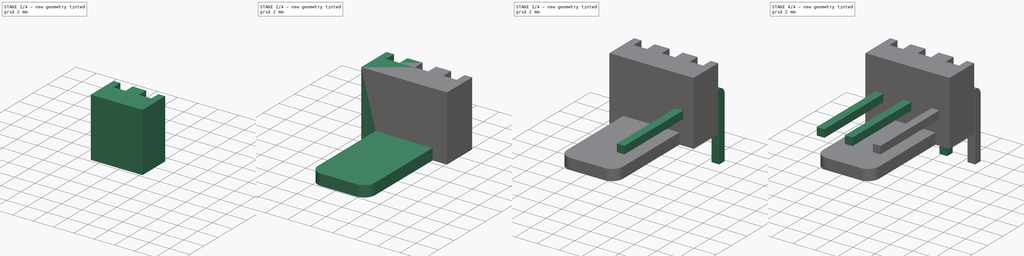
[diagram: build sequence overview — one tinted view per stage of 4, left to right]
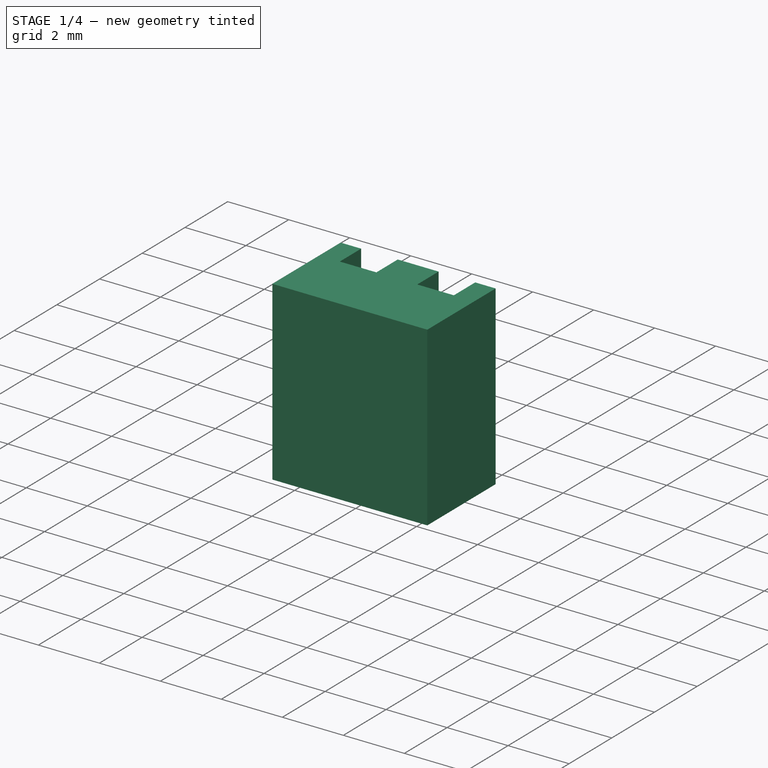
[diagram: stage 1 of 4 — iso view after this stage's code; geometry added in this stage tinted green]
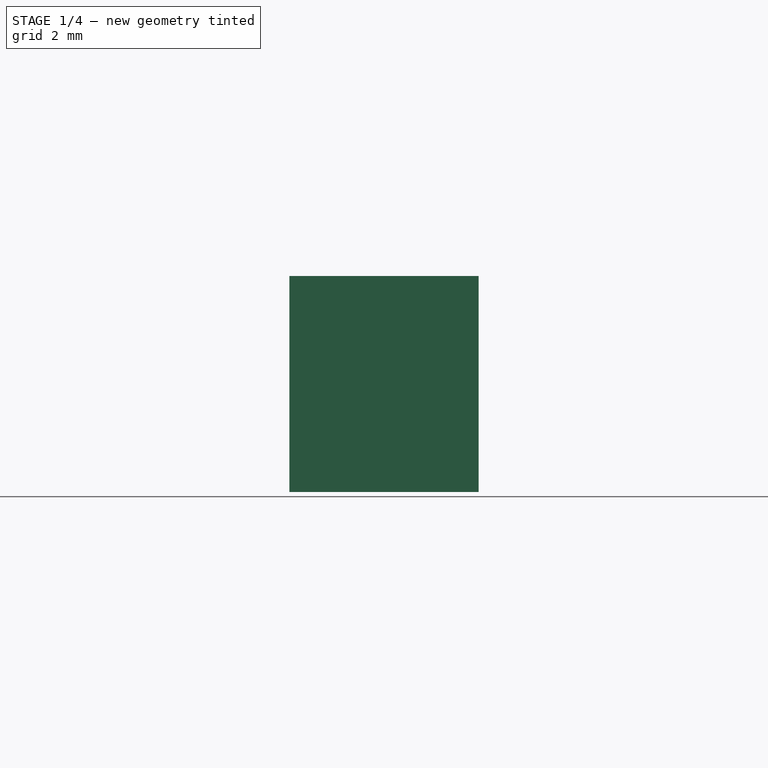
[diagram: stage 1 of 4 — front view after this stage's code; geometry added in this stage tinted green]
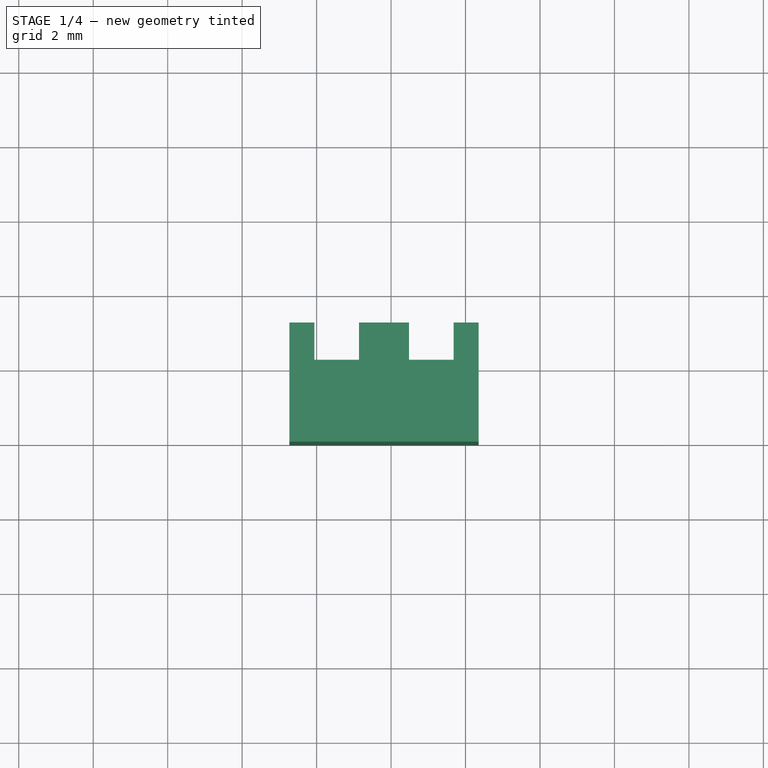
[diagram: stage 1 of 4 — top view after this stage's code; geometry added in this stage tinted green]
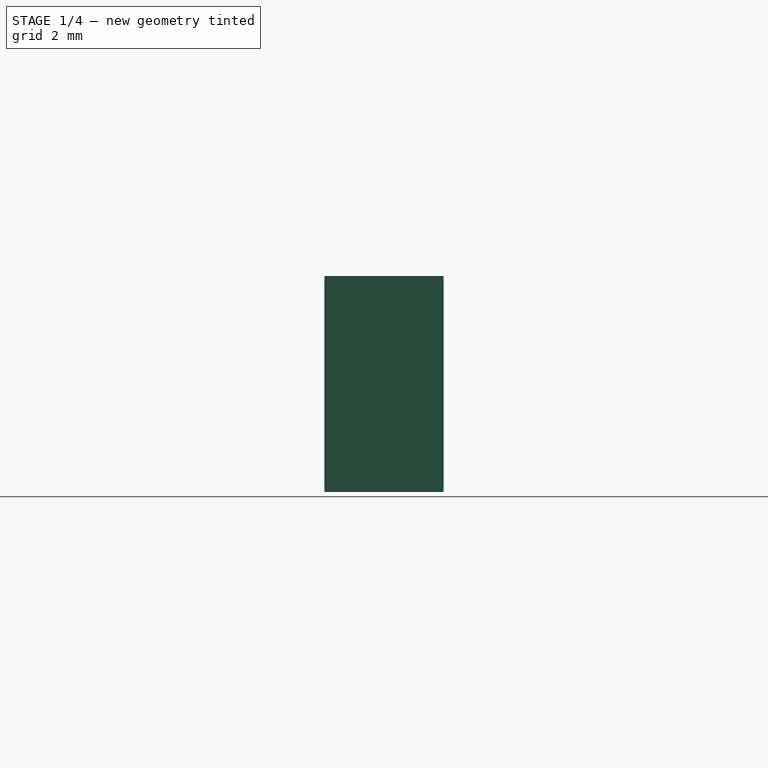
[diagram: stage 1 of 4 — right view after this stage's code; geometry added in this stage tinted green]
FCSTD DOCUMENT  (FreeCAD 0.14R3692 (Git))
Label: Connector_Male-RightAngle
License: CC-BY 3.0
LicenseURL: http://creativecommons.org/licenses/by/3.0/
objects: Sketcher::SketchObject×4, Part::FeaturePython×4, Part::MultiFuse×3, PartDesign::Pad×2, Part::Sweep×1, Part::Fillet×1
note: 17 computed .brp shape members not serialized (recipe doc carries the construction recipe); baked Part::Feature solids carry a one-line shape summary decoded from their .brp

FEATURE [Sketcher::SketchObject] Sketch  label="ConnectorSketch"
  sketch-geometry (8):
    g0: LineSegment StartX=1.27 StartY=0 StartZ=0 EndX=-1.27 EndY=0 EndZ=0
    g1: LineSegment StartX=-1.27 StartY=0 StartZ=0 EndX=-1.27 EndY=3.2 EndZ=0
    g2: LineSegment StartX=1.27 StartY=3.2 StartZ=0 EndX=1.27 EndY=0 EndZ=0
    g3: LineSegment StartX=1.27 StartY=3.2 StartZ=0 EndX=0.6 EndY=3.2 EndZ=0
    g4: LineSegment StartX=0.6 StartY=3.2 StartZ=0 EndX=0.6 EndY=2.2 EndZ=0
    g5: LineSegment StartX=0.6 StartY=2.2 StartZ=0 EndX=-0.6 EndY=2.2 EndZ=0
    g6: LineSegment StartX=-0.6 StartY=2.2 StartZ=0 EndX=-0.6 EndY=3.2 EndZ=0
    g7: LineSegment StartX=-0.6 StartY=3.2 StartZ=0 EndX=-1.27 EndY=3.2 EndZ=0
  constraints (23):
    c: Coincident(g0,g1)
    c: Horizontal(g0)
    c: Vertical(g1)
    c: Vertical(g2)
    c: Coincident(g2,g3)
    c: Horizontal(g3)
    c: Coincident(g3,g4)
    c: Vertical(g4)
    c: Coincident(g4,g5)
    c: Horizontal(g5)
    c: Coincident(g5,g6)
    c: Vertical(g6)
    c: Coincident(g6,g7)
    c: Coincident(g7,g1)
    c: Horizontal(g7)
    c: DistanceX(g0) = -2.54
    c: DistanceX(g5) = -1.2
    c: Equal(g7,g3)
    c: DistanceY(g2) = -3.2
    c: Equal(g1,g2)
    c: DistanceY(g4) = -1
    c: Coincident(g0,g2)
    c: Symmetric(g0,g0,g-1)
FEATURE [PartDesign::Pad] Pad  label="ConnectorPad"
  Length = 5.8
  Length2 = 100
  Sketch = -> Sketch
  Type = 0
FEATURE [Part::FeaturePython] Clone  label="Clone of ConnectorPad"  # Draft clone (typed FeaturePython)
  Objects = -> [Pad]
  Placement = pos=(2.54,0,0) rot=(0,0,1;0rad)
  Scale = (1,1,1)
FEATURE [Part::FeaturePython] Clone001  label="Clone of ConnectorPad001"  # Draft clone (typed FeaturePython)
  Objects = -> [Pad]
  Placement = pos=(5.08,0,0) rot=(0,0,1;0rad)
  Scale = (1,1,1)
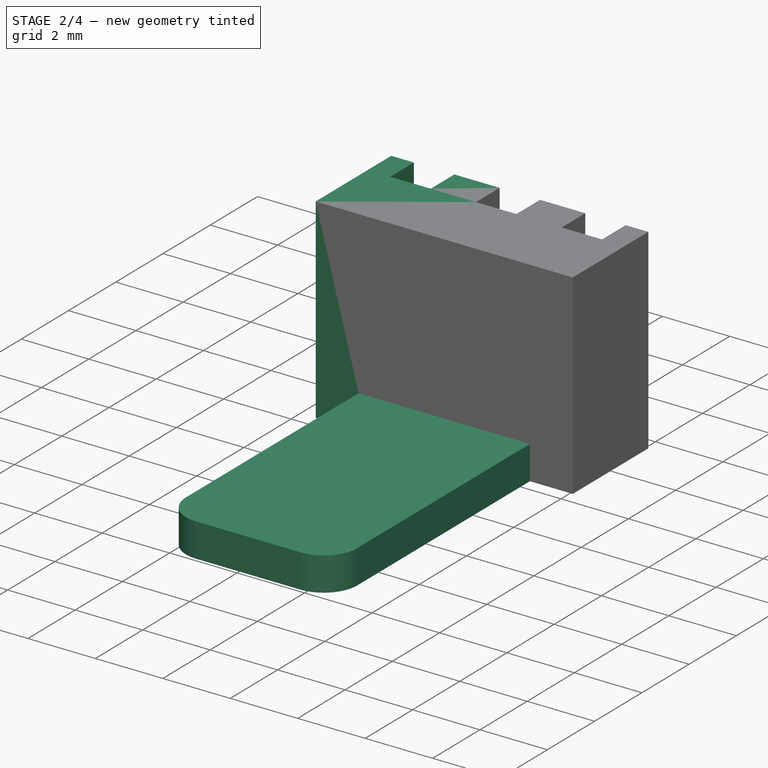
[diagram: stage 2 of 4 — iso view after this stage's code; geometry added in this stage tinted green]
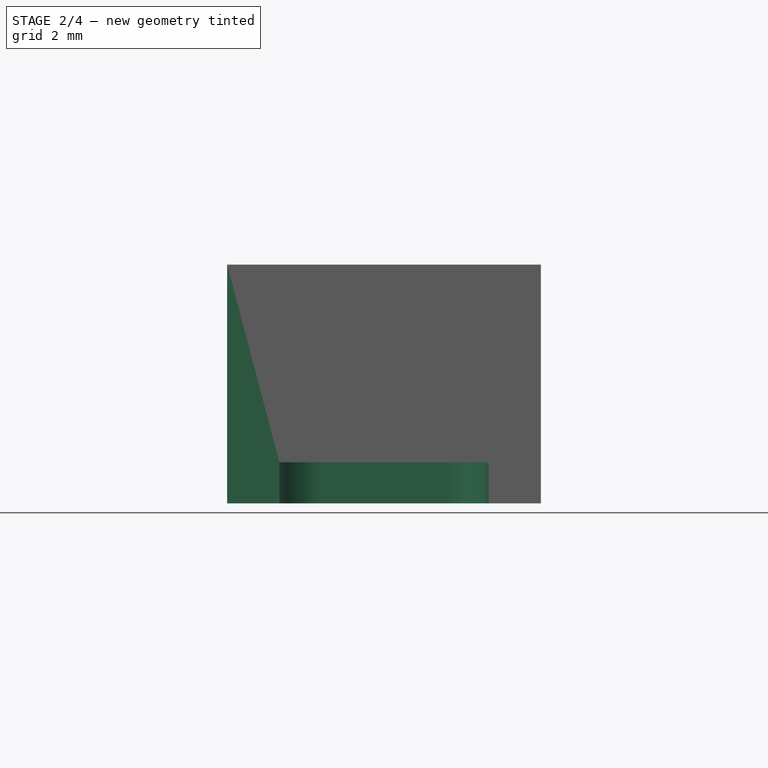
[diagram: stage 2 of 4 — front view after this stage's code; geometry added in this stage tinted green]
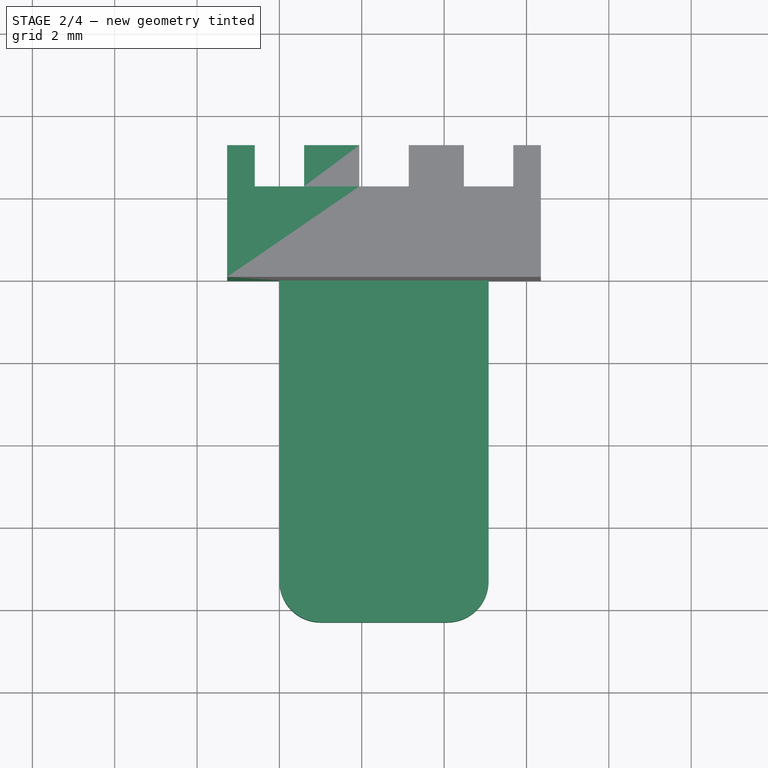
[diagram: stage 2 of 4 — top view after this stage's code; geometry added in this stage tinted green]
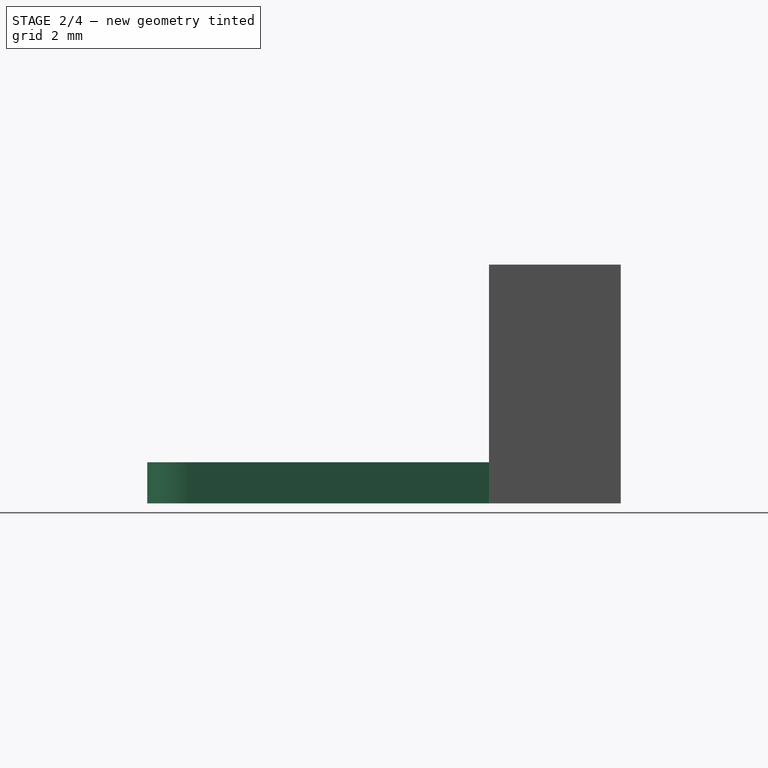
[diagram: stage 2 of 4 — right view after this stage's code; geometry added in this stage tinted green]
FEATURE [Part::MultiFuse] Fusion  label="ConnectorFusion"
  Shapes = -> [Pad,Clone,Clone001]
FEATURE [Sketcher::SketchObject] Sketch003  label="FinSketch003"
  Placement = pos=(0,0,0) rot=(1,0,0;1.5708rad)
  Support = -> Fusion [Face6]
  sketch-geometry (4):
    g0: LineSegment StartX=0 StartY=0 StartZ=0 EndX=5.08 EndY=0 EndZ=0
    g1: LineSegment StartX=5.08 StartY=0 StartZ=0 EndX=5.08 EndY=1 EndZ=0
    g2: LineSegment StartX=5.08 StartY=1 StartZ=0 EndX=0 EndY=1 EndZ=0
    g3: LineSegment StartX=0 StartY=1 StartZ=0 EndX=0 EndY=0 EndZ=0
  constraints (11):
    c: Coincident(g0,g1)
    c: Coincident(g1,g2)
    c: Coincident(g2,g3)
    c: Coincident(g3,g0)
    c: Horizontal(g0)
    c: Horizontal(g2)
    c: Vertical(g1)
    c: Vertical(g3)
    c: Coincident(g-1,g0)
    c: DistanceY(g1) = 1
    c: DistanceX(g0) = 5.08
FEATURE [PartDesign::Pad] Pad001  label="FinPad001"
  Length = 8.3
  Length2 = 100
  Sketch = -> Sketch003
  Type = 0
FEATURE [Part::Fillet] Fillet  label="FinFillet"
  Base = -> Pad001
  Edges = 2 edges r=1: [Edge31,Edge35]
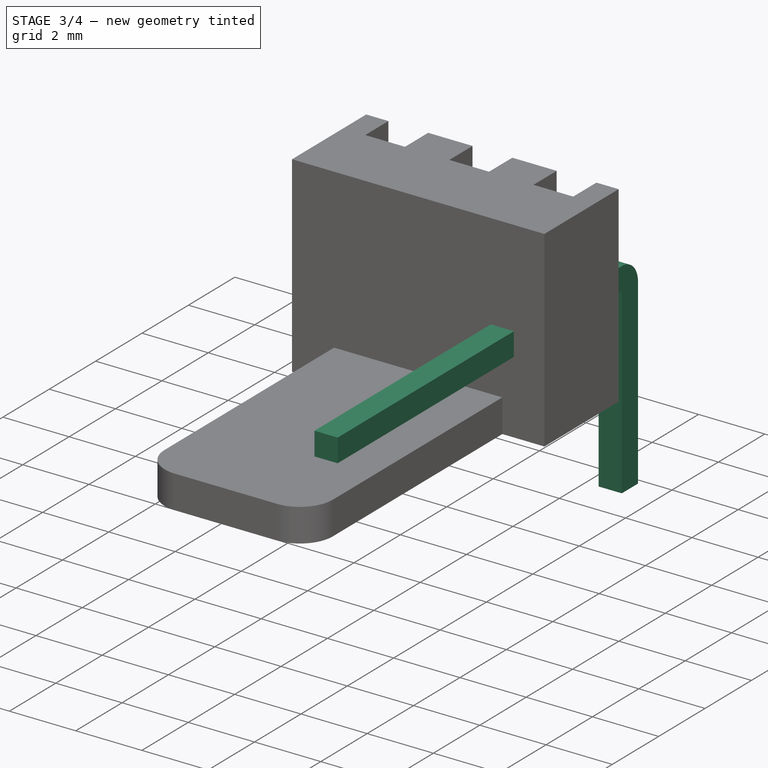
[diagram: stage 3 of 4 — iso view after this stage's code; geometry added in this stage tinted green]
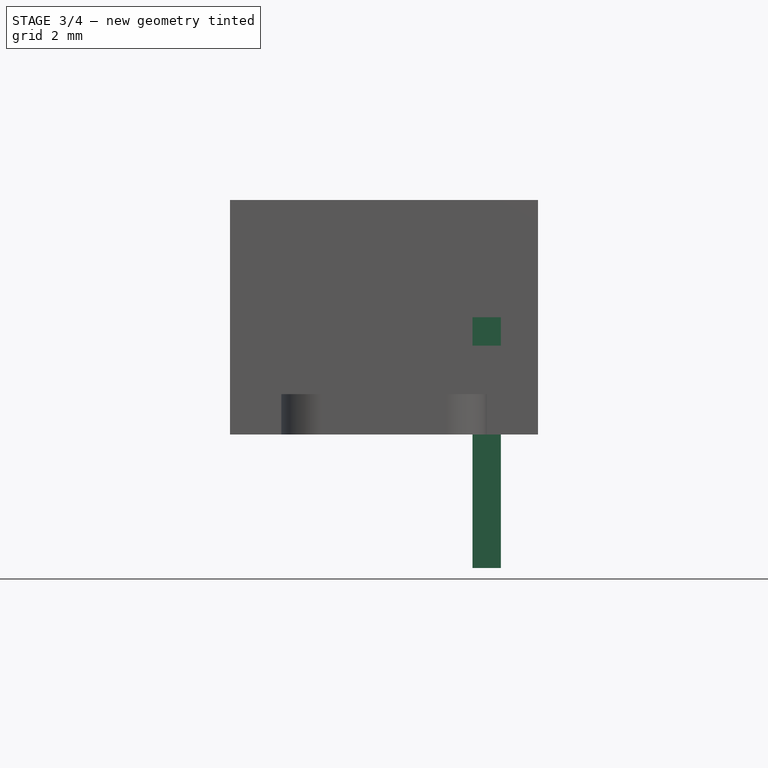
[diagram: stage 3 of 4 — front view after this stage's code; geometry added in this stage tinted green]
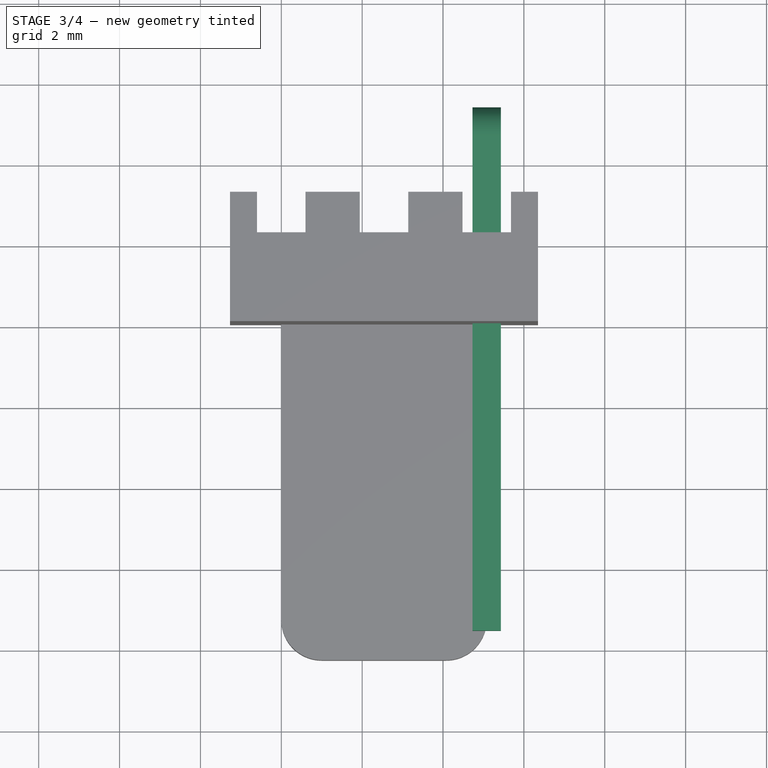
[diagram: stage 3 of 4 — top view after this stage's code; geometry added in this stage tinted green]
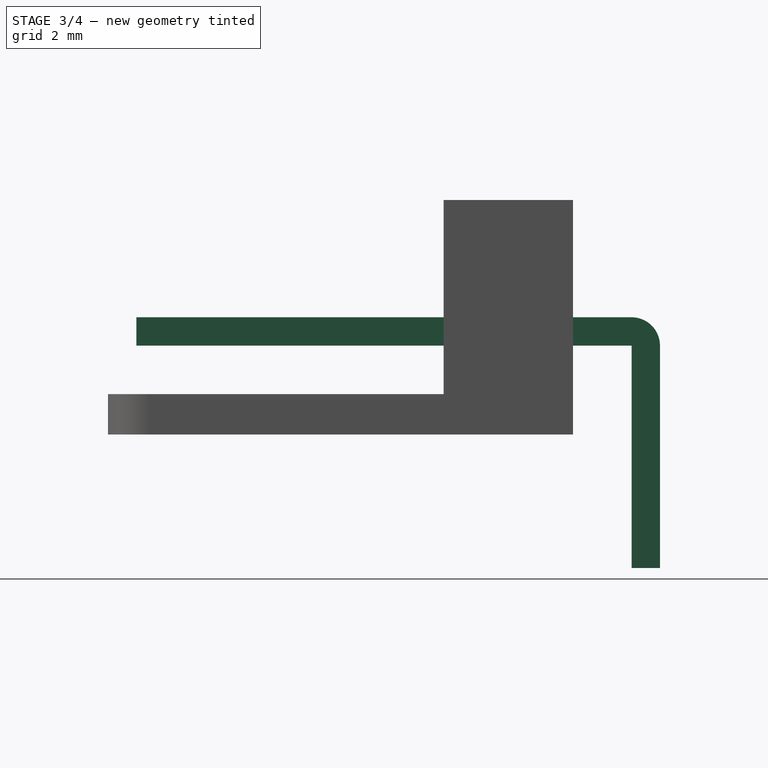
[diagram: stage 3 of 4 — right view after this stage's code; geometry added in this stage tinted green]
FEATURE [Sketcher::SketchObject] Sketch001  label="PinSketch001"
  Placement = pos=(0,0,0) rot=(0.57735,0.57735,0.57735;2.0944rad)
  sketch-geometry (3):
    g0: LineSegment StartX=5 StartY=-3.3 StartZ=0 EndX=5 EndY=2.2 EndZ=0
    g1: LineSegment StartX=4.65 StartY=2.55 StartZ=0 EndX=-7.6 EndY=2.55 EndZ=0
    g2: ArcOfCircle CenterX=4.65 CenterY=2.2 CenterZ=0 NormalX=0 NormalY=0 NormalZ=1 Radius=0.35 StartAngle=0 EndAngle=1.5708
  constraints (9):
    c: Vertical(g0)
    c: Horizontal(g1)
    c: DistanceY(g-1,g0) = -3.3
    c: DistanceX(g-1,g1) = -7.6
    c: Tangent(g0,g2)
    c: Tangent(g1,g2)
    c: DistanceY(g-1,g1) = 2.55
    c: DistanceX(g-1,g0) = 5
    c: Radius(g2) = 0.35
FEATURE [Sketcher::SketchObject] Sketch002  label="PinPathSketch002"
  Placement = pos=(0,0,0) rot=(-1,0,0;4.71239rad)
  sketch-geometry (4):
    g0: LineSegment StartX=0.35 StartY=2.2 StartZ=0 EndX=-0.35 EndY=2.2 EndZ=0
    g1: LineSegment StartX=-0.35 StartY=2.2 StartZ=0 EndX=-0.35 EndY=2.9 EndZ=0
    g2: LineSegment StartX=-0.35 StartY=2.9 StartZ=0 EndX=0.35 EndY=2.9 EndZ=0
    g3: LineSegment StartX=0.35 StartY=2.9 StartZ=0 EndX=0.35 EndY=2.2 EndZ=0
  constraints (12):
    c: Coincident(g0,g1)
    c: Coincident(g1,g2)
    c: Coincident(g2,g3)
    c: Coincident(g3,g0)
    c: Horizontal(g0)
    c: Horizontal(g2)
    c: Vertical(g1)
    c: Vertical(g3)
    c: Equal(g0,g1)
    c: DistanceY(g3) = -0.7
    c: Symmetric(g0,g0,g-2)
    c: DistanceY(g-1,g0) = 2.2
FEATURE [Part::Sweep] Sweep  label="PinSweep"
  Frenet = false
  Sections = -> [Sketch002]
  Solid = true
  Spine = -> Sketch001 [Edge2]
  Transition = 1
FEATURE [Part::FeaturePython] Clone003  label="Clone of PinSweep001"  # Draft clone (typed FeaturePython)
  Objects = -> [Sweep]
  Placement = pos=(5.08,0,0) rot=(0,0,1;0rad)
  Scale = (1,1,1)
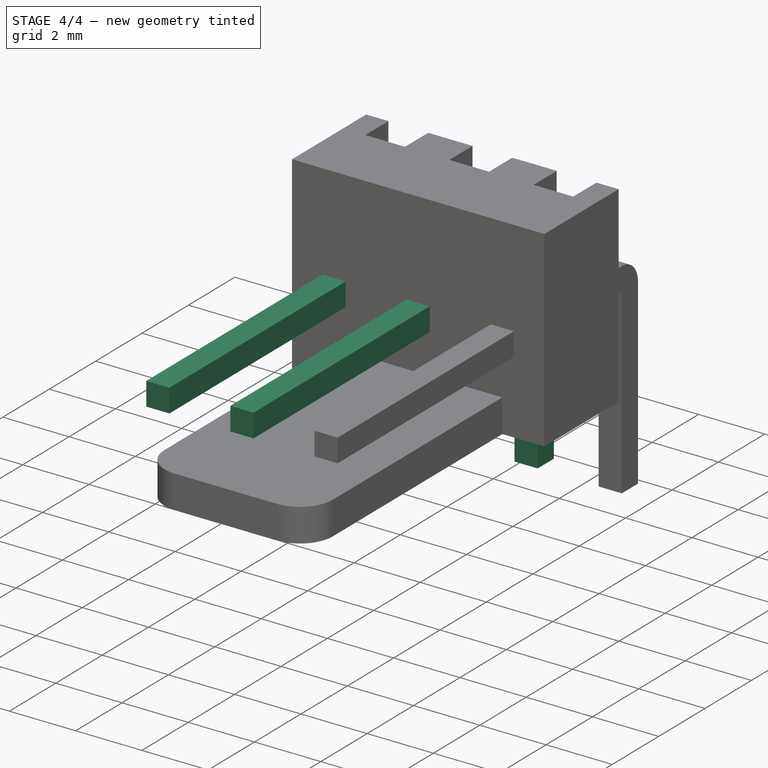
[diagram: stage 4 of 4 — iso view after this stage's code; geometry added in this stage tinted green]
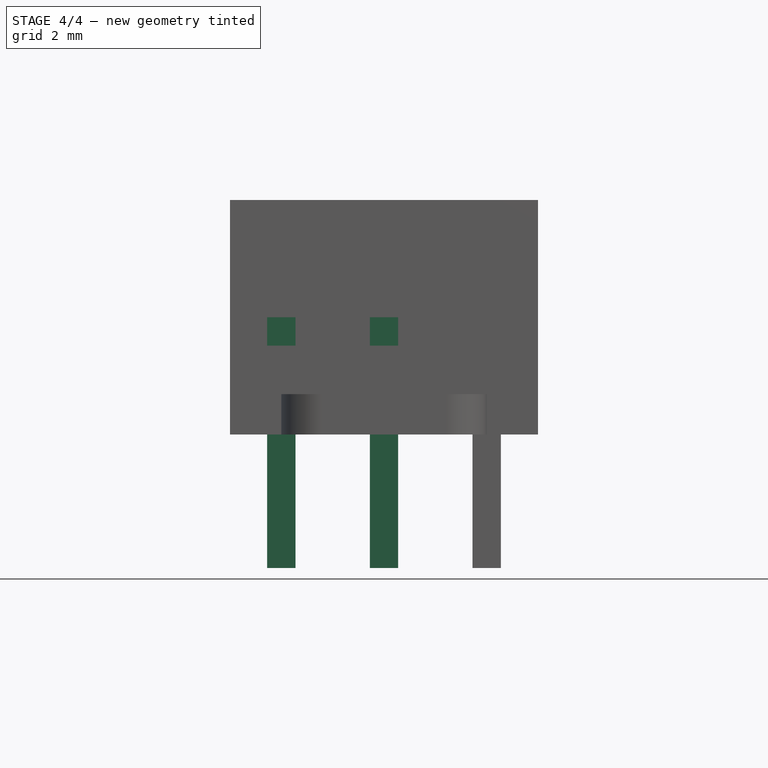
[diagram: stage 4 of 4 — front view after this stage's code; geometry added in this stage tinted green]
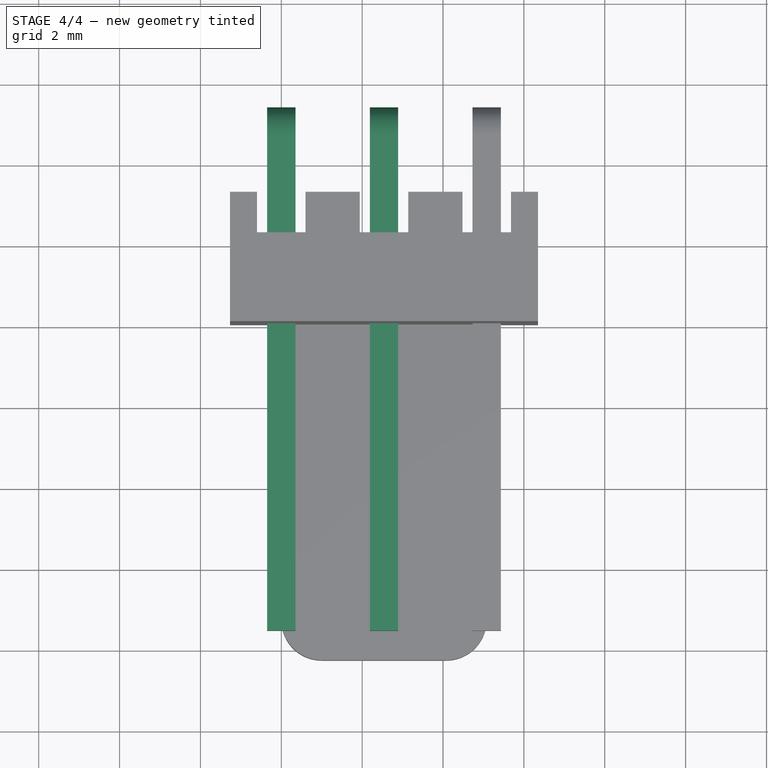
[diagram: stage 4 of 4 — top view after this stage's code; geometry added in this stage tinted green]
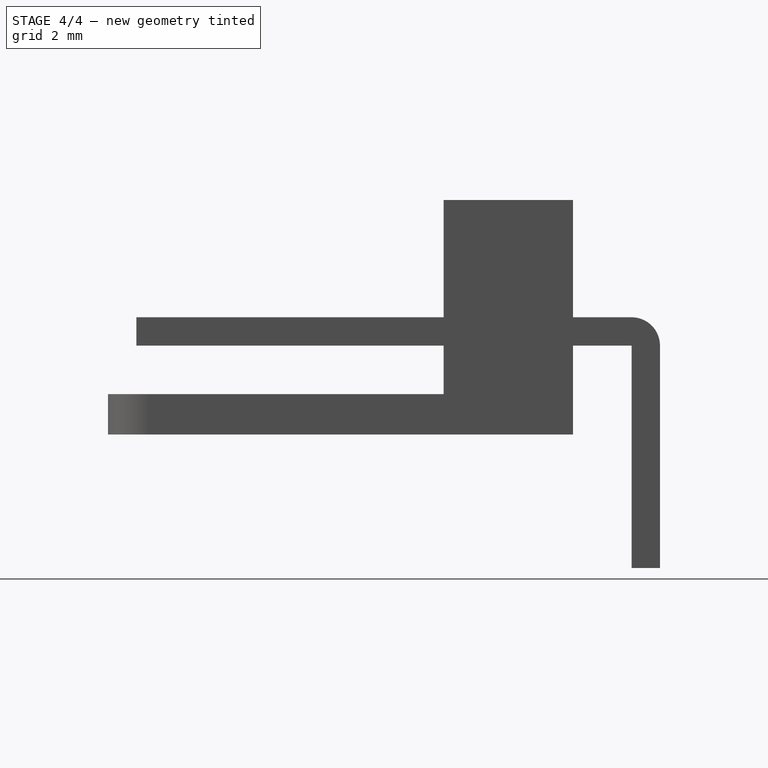
[diagram: stage 4 of 4 — right view after this stage's code; geometry added in this stage tinted green]
FEATURE [Part::FeaturePython] Clone002  label="Clone of PinSweep"  # Draft clone (typed FeaturePython)
  Objects = -> [Sweep]
  Placement = pos=(2.54,0,0) rot=(0,0,1;0rad)
  Scale = (1,1,1)
FEATURE [Part::MultiFuse] Fusion001  label="PinFusion001"
  Shapes = -> [Sweep,Clone002,Clone003]
FEATURE [Part::MultiFuse] Fusion002  label="ConnectorFusion002"
  Shapes = -> [Fusion001,Fillet]
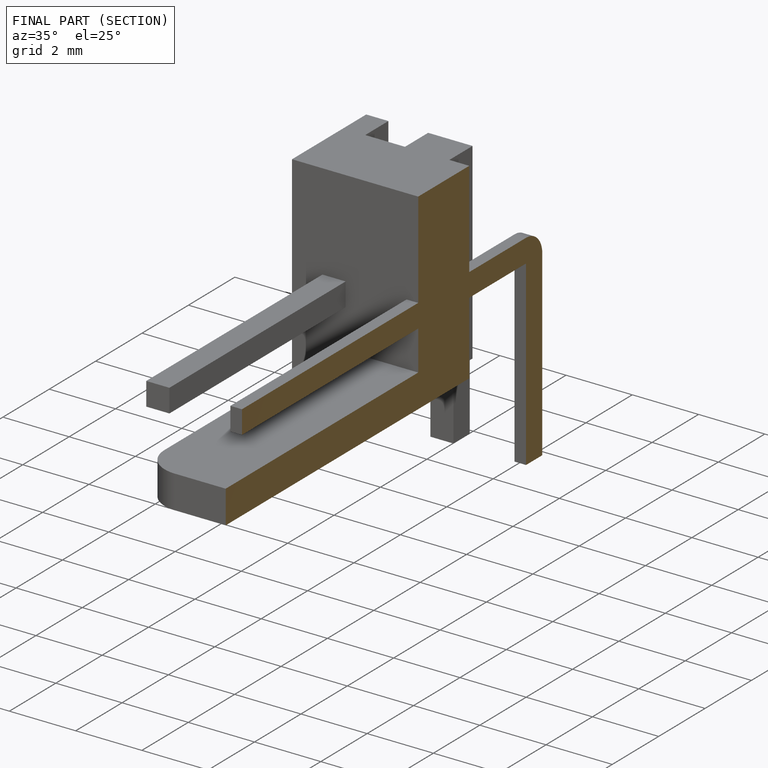
[diagram: finished part — half-section view (interior)]
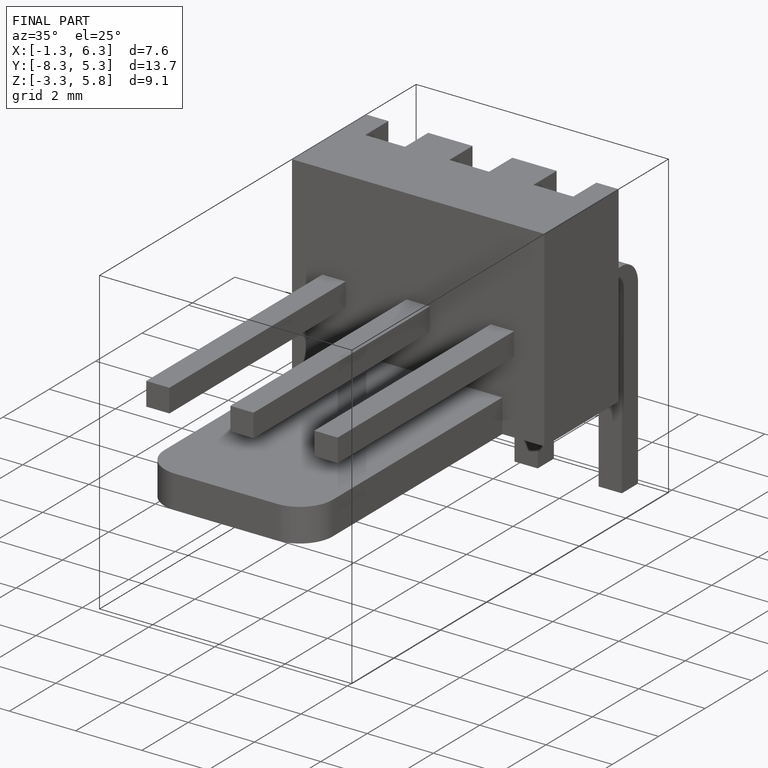
[diagram: finished part — iso view with bounding-box wireframe]
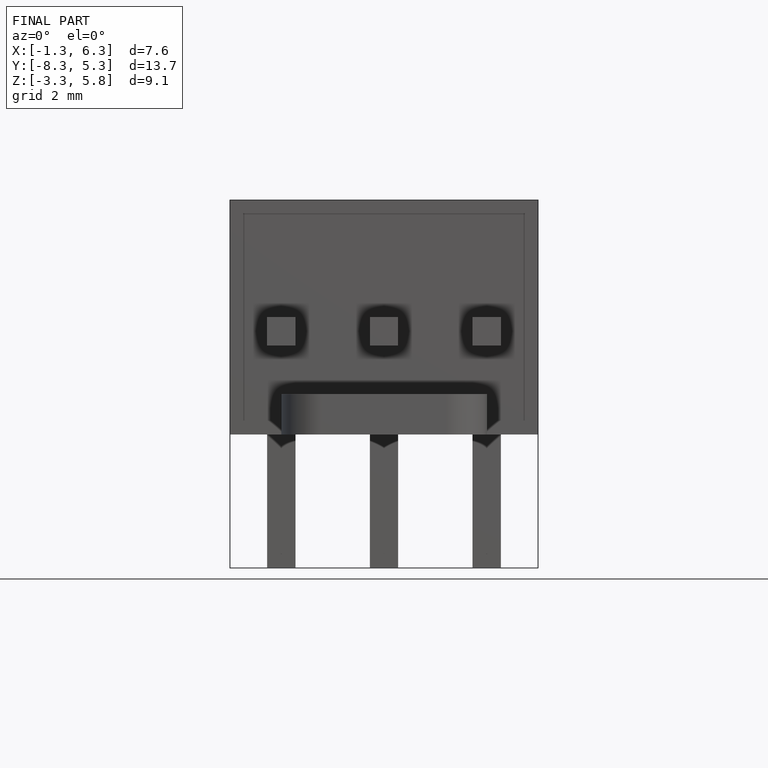
[diagram: finished part — front view with bounding-box wireframe]
